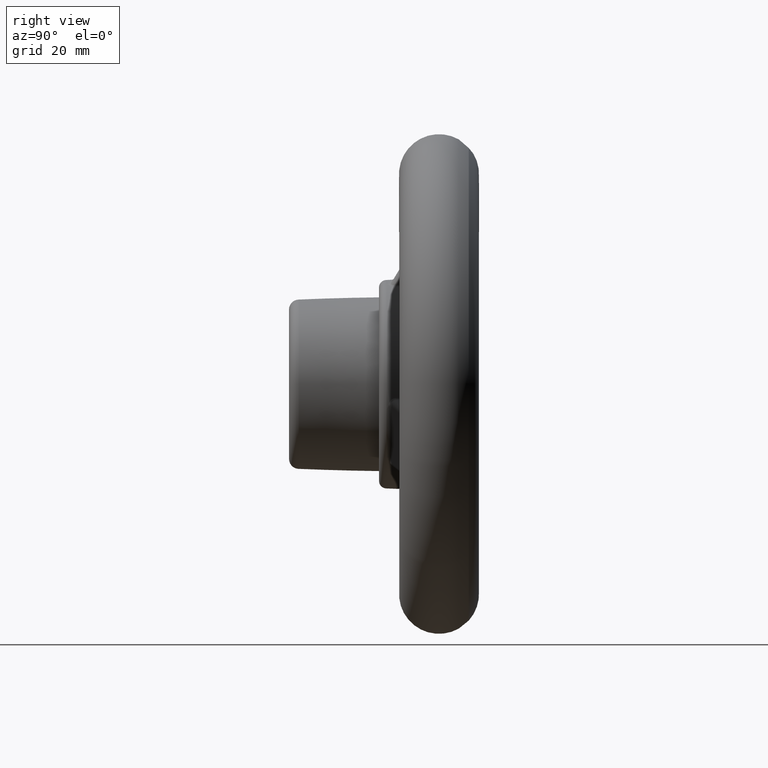
[diagram: clean part render]
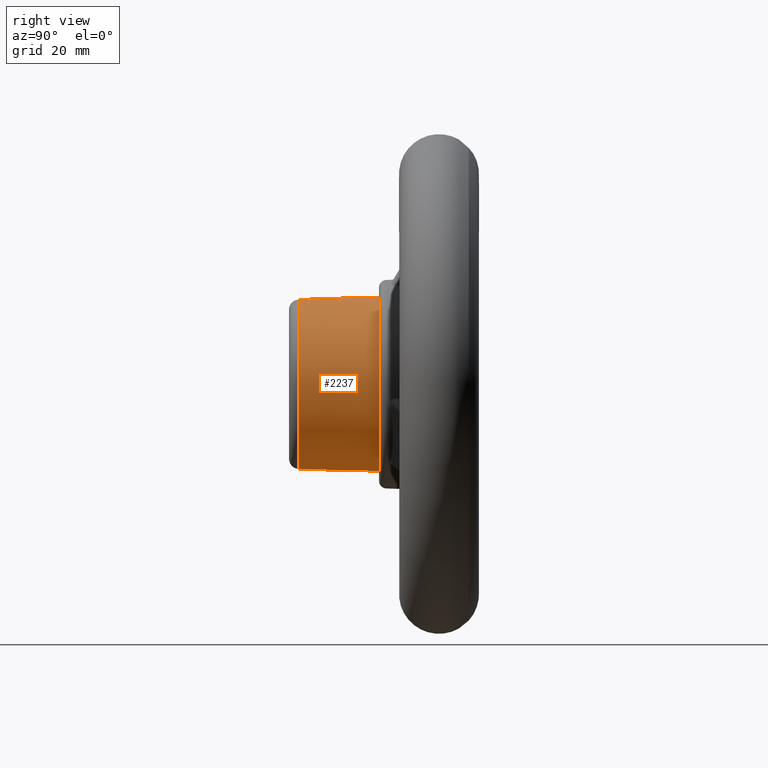
[diagram: same view with one face highlighted and labeled with its STEP entity id]
A machine part, right view. The second image highlights one B-rep face of the part: STEP entity #2237.
In plain terms, the highlighted conical surface has half-angle 1.591 deg.
Its self-contained STEP definition (entity closure, byte-faithful):
#416=FACE_BOUND('',#625,.T.);
#461=FACE_OUTER_BOUND('',#624,.T.);
#624=EDGE_LOOP('',(#1512));
#625=EDGE_LOOP('',(#1513));
#796=CIRCLE('',#2402,17.0540129407089);
#797=CIRCLE('',#2405,17.5);
#932=VERTEX_POINT('',#3090);
#933=VERTEX_POINT('',#3094);
#1145=EDGE_CURVE('',#932,#932,#796,.T.);
#1146=EDGE_CURVE('',#933,#933,#797,.T.);
#1512=ORIENTED_EDGE('',*,*,#1146,.F.);
#1513=ORIENTED_EDGE('',*,*,#1145,.F.);
#2232=CONICAL_SURFACE('',#2404,17.25,1.59114027119458);
#2237=ADVANCED_FACE('',(#461,#416),#2232,.T.);
#2402=AXIS2_PLACEMENT_3D('',#3091,#2624,#2625);
#2404=AXIS2_PLACEMENT_3D('',#3093,#2628,#2629);
#2405=AXIS2_PLACEMENT_3D('',#3095,#2630,#2631);
#2624=DIRECTION('center_axis',(0.,-1.,0.));
#2625=DIRECTION('ref_axis',(1.,0.,-6.12323399573677E-17));
#2628=DIRECTION('center_axis',(0.,1.,0.));
#2629=DIRECTION('ref_axis',(-1.,0.,0.));
#2630=DIRECTION('center_axis',(0.,1.,0.));
#2631=DIRECTION('ref_axis',(-1.,0.,0.));
#3090=CARTESIAN_POINT('',(-17.0540129407089,-26.0555341344807,-2.08851423604567E-15));
#3091=CARTESIAN_POINT('Origin',(0.,-26.0555341344807,-1.04425711802283E-15));
#3093=CARTESIAN_POINT('Origin',(0.,-19.,0.));
#3094=CARTESIAN_POINT('',(-17.5,-10.,0.));
#3095=CARTESIAN_POINT('Origin',(0.,-10.,0.));